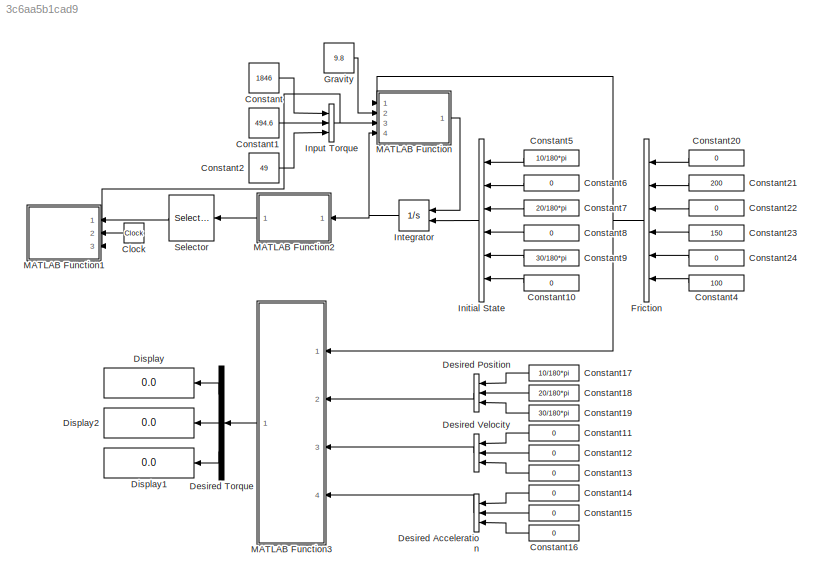
MODEL slx_3c6aa5b1cad9
KIND model
CONFIG AbsTol = auto
CONFIG EnableMultiTasking = off
CONFIG FixedStep = 0.01
CONFIG MaxStep = auto
CONFIG MinStep = auto
CONFIG RelTol = 1e-3
CONFIG SampleTimeConstraint = Unconstrained
CONFIG Solver = ode1
CONFIG SolverName = ode1
CONFIG StartTime = 0.0
CONFIG StopTime = inf
BLOCK [Clock] Clock
BLOCK [Constant] Constant
  Value = 1846
BLOCK [Constant] Constant1
  Value = 494.6
BLOCK [Constant] Constant10
  Value = 0
BLOCK [Constant] Constant11
  Value = 0
BLOCK [Constant] Constant12
  Value = 0
BLOCK [Constant] Constant13
  Value = 0
BLOCK [Constant] Constant14
  Value = 0
BLOCK [Constant] Constant15
  Value = 0
BLOCK [Constant] Constant16
  Value = 0
BLOCK [Constant] Constant17
  Value = 10/180*pi
BLOCK [Constant] Constant18
  Value = 20/180*pi
BLOCK [Constant] Constant19
  Value = 30/180*pi
BLOCK [Constant] Constant2
  Value = 49
BLOCK [Constant] Constant20
  Value = 0
BLOCK [Constant] Constant21
  Value = 200
BLOCK [Constant] Constant22
  Value = 0
BLOCK [Constant] Constant23
  Value = 150
BLOCK [Constant] Constant24
  Value = 0
BLOCK [Constant] Constant4
  Value = 100
BLOCK [Constant] Constant5
  Value = 10/180*pi
BLOCK [Constant] Constant6
  Value = 0
BLOCK [Constant] Constant7
  Value = 20/180*pi
BLOCK [Constant] Constant8
  Value = 0
BLOCK [Constant] Constant9
  Value = 30/180*pi
BLOCK [BusCreator] Desired Acceleration
  DisplayOption = bar
  InheritFromInputs = on
  Inputs = 3
  Ports = [3, 1]
BLOCK [BusCreator] Desired Position
  DisplayOption = bar
  InheritFromInputs = on
  Inputs = 3
  Ports = [3, 1]
BLOCK [Demux] Desired Torque
  DisplayOption = bar
  Outputs = 3
  Ports = [1, 3]
BLOCK [BusCreator] Desired Velocity
  DisplayOption = bar
  InheritFromInputs = on
  Inputs = 3
  Ports = [3, 1]
BLOCK [Display] Display
  Decimation = 1
  Ports = [1]
BLOCK [Display] Display1
  Decimation = 1
  Ports = [1]
BLOCK [Display] Display2
  Decimation = 1
  Ports = [1]
BLOCK [BusCreator] Friction
  DisplayOption = bar
  InheritFromInputs = on
  Inputs = 6
  Ports = [6, 1]
BLOCK [Constant] Gravity
  Value = 9.8
BLOCK [BusCreator] Initial State
  DisplayOption = bar
  InheritFromInputs = on
  Inputs = 6
  Ports = [6, 1]
BLOCK [BusCreator] Input Torque
  DisplayOption = bar
  InheritFromInputs = on
  Inputs = 3
  Ports = [3, 1]
BLOCK [Integrator] Integrator
  InitialCondition = [1/18*pi;0;1/9*pi;0;1/6*pi;0]
  InitialConditionSource = external
  Ports = [2, 1]
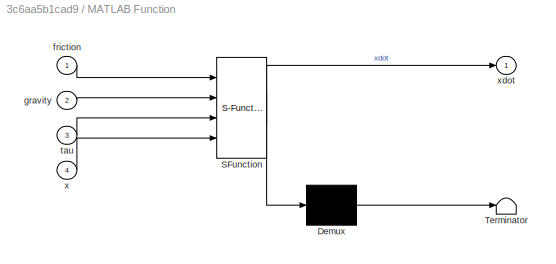
BLOCK [SubSystem] MATLAB Function
  ErrorFcn = Stateflow.Translate.translate
  PermitHierarchicalResolution = ExplicitOnly
  Ports = [4, 1]
  RequestExecContextInheritance = off
  SFBlockType = MATLAB Function
  TreatAsAtomicUnit = on
BLOCK [Demux] MATLAB Function/ Demux 
  Outputs = 1
  Ports = [1, 1]
BLOCK [S-Function] MATLAB Function/ SFunction 
  EnableBusSupport = on
  FunctionName = sf_sfun
  PortCounts = [4 2]
  Ports = [4, 2]
  SFcnIsStateOwnerBlock = off
  SFunctionDeploymentMode = off
  Tag = Stateflow S-Function task1 2
BLOCK [Terminator] MATLAB Function/ Terminator 
BLOCK [Inport] MATLAB Function/friction
  IconDisplay = Port number
BLOCK [Inport] MATLAB Function/gravity
  IconDisplay = Port number
  Port = 2
BLOCK [Inport] MATLAB Function/tau
  IconDisplay = Port number
  Port = 3
BLOCK [Inport] MATLAB Function/x
  IconDisplay = Port number
  Port = 4
BLOCK [Outport] MATLAB Function/xdot
  IconDisplay = Port number
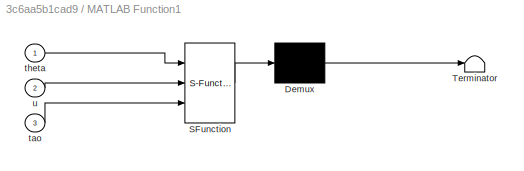
BLOCK [SubSystem] MATLAB Function1
  ErrorFcn = Stateflow.Translate.translate
  PermitHierarchicalResolution = ExplicitOnly
  Ports = [3]
  RequestExecContextInheritance = off
  SFBlockType = MATLAB Function
  TreatAsAtomicUnit = on
BLOCK [Demux] MATLAB Function1/ Demux 
  Outputs = 1
  Ports = [1, 1]
BLOCK [S-Function] MATLAB Function1/ SFunction 
  EnableBusSupport = on
  FunctionName = sf_sfun
  PortCounts = [3 1]
  Ports = [3, 1]
  SFcnIsStateOwnerBlock = off
  SFunctionDeploymentMode = off
  Tag = Stateflow S-Function task1 1
BLOCK [Terminator] MATLAB Function1/ Terminator 
BLOCK [Inport] MATLAB Function1/tao
  IconDisplay = Port number
  Port = 3
BLOCK [Inport] MATLAB Function1/theta
  IconDisplay = Port number
BLOCK [Inport] MATLAB Function1/u
  IconDisplay = Port number
  Port = 2
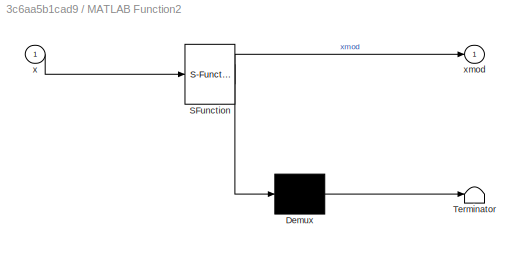
BLOCK [SubSystem] MATLAB Function2
  ErrorFcn = Stateflow.Translate.translate
  PermitHierarchicalResolution = ExplicitOnly
  Ports = [1, 1]
  RequestExecContextInheritance = off
  SFBlockType = MATLAB Function
  TreatAsAtomicUnit = on
BLOCK [Demux] MATLAB Function2/ Demux 
  Outputs = 1
  Ports = [1, 1]
BLOCK [S-Function] MATLAB Function2/ SFunction 
  EnableBusSupport = on
  FunctionName = sf_sfun
  PortCounts = [1 2]
  Ports = [1, 2]
  SFcnIsStateOwnerBlock = off
  SFunctionDeploymentMode = off
  Tag = Stateflow S-Function task1 3
BLOCK [Terminator] MATLAB Function2/ Terminator 
BLOCK [Inport] MATLAB Function2/x
  IconDisplay = Port number
BLOCK [Outport] MATLAB Function2/xmod
  IconDisplay = Port number
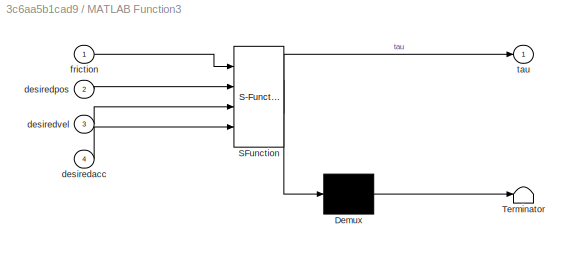
BLOCK [SubSystem] MATLAB Function3
  ErrorFcn = Stateflow.Translate.translate
  PermitHierarchicalResolution = ExplicitOnly
  Ports = [4, 1]
  RequestExecContextInheritance = off
  SFBlockType = MATLAB Function
  TreatAsAtomicUnit = on
BLOCK [Demux] MATLAB Function3/ Demux 
  Outputs = 1
  Ports = [1, 1]
BLOCK [S-Function] MATLAB Function3/ SFunction 
  EnableBusSupport = on
  FunctionName = sf_sfun
  PortCounts = [4 2]
  Ports = [4, 2]
  SFcnIsStateOwnerBlock = off
  SFunctionDeploymentMode = off
  Tag = Stateflow S-Function task1 4
BLOCK [Terminator] MATLAB Function3/ Terminator 
BLOCK [Inport] MATLAB Function3/desiredacc
  IconDisplay = Port number
  Port = 4
BLOCK [Inport] MATLAB Function3/desiredpos
  IconDisplay = Port number
  Port = 2
BLOCK [Inport] MATLAB Function3/desiredvel
  IconDisplay = Port number
  Port = 3
BLOCK [Inport] MATLAB Function3/friction
  IconDisplay = Port number
BLOCK [Outport] MATLAB Function3/tau
  IconDisplay = Port number
BLOCK [Selector] Selector
  IndexOptions = Index vector (dialog)
  Indices = [1 3 5]
  InputPortWidth = 6
  OutputSizes = 1
  Ports = [1, 1]
LINE Clock:1 -> MATLAB Function1:2
LINE Constant10:1 -> Initial State:6
LINE Constant11:1 -> Desired Velocity:1
LINE Constant12:1 -> Desired Velocity:2
LINE Constant13:1 -> Desired Velocity:3
LINE Constant14:1 -> Desired Acceleration:1
LINE Constant15:1 -> Desired Acceleration:2
LINE Constant16:1 -> Desired Acceleration:3
LINE Constant17:1 -> Desired Position:1
LINE Constant18:1 -> Desired Position:2
LINE Constant19:1 -> Desired Position:3
LINE Constant1:1 -> Input Torque:2
LINE Constant20:1 -> Friction:1
LINE Constant21:1 -> Friction:2
LINE Constant22:1 -> Friction:3
LINE Constant23:1 -> Friction:4
LINE Constant24:1 -> Friction:5
LINE Constant2:1 -> Input Torque:3
LINE Constant4:1 -> Friction:6
LINE Constant5:1 -> Initial State:1
LINE Constant6:1 -> Initial State:2
LINE Constant7:1 -> Initial State:3
LINE Constant8:1 -> Initial State:4
LINE Constant9:1 -> Initial State:5
LINE Constant:1 -> Input Torque:1
LINE Desired Acceleration:1 -> MATLAB Function3:4
LINE Desired Position:1 -> MATLAB Function3:2
LINE Desired Torque:1 -> Display:1
LINE Desired Torque:2 -> Display2:1
LINE Desired Torque:3 -> Display1:1
LINE Desired Velocity:1 -> MATLAB Function3:3
NET Friction:1 -> MATLAB Function3:1, MATLAB Function:1
LINE Gravity:1 -> MATLAB Function:2
LINE Initial State:1 -> Integrator:2
NET Input Torque:1 -> MATLAB Function1:3, MATLAB Function:3
NET Integrator:1 -> MATLAB Function2:1, MATLAB Function:4
LINE MATLAB Function2:1 -> Selector:1
LINE MATLAB Function3:1 -> Desired Torque:1
LINE MATLAB Function:1 -> Integrator:1
LINE Selector:1 -> MATLAB Function1:1
note: NET lines group one-source signal fan-out (src -> all destinations, sorted); 1:1 wires keep LINE
CHART MATLAB Function1 states=1 transitions=1
  STATE_LABEL 'eML_blk_kernel()'
  STATE_LABEL "SCRIPT:\nfunction animate(theta,u,tao)\n%#codegen\ncoder.extrinsic('saveas');\ncoder.extrinsic('num2str');\nu = int16( u / 0.01) + 1;\ntheta1 = theta(1);\ntheta2 = theta(2);\ntheta3 = theta(3);\n%hold off\nT_0 = eye(4);\nhold off\nl1 = 4;\nl2 = 3;\nl3 = 2;\npoint1=[[0,0,0];[4,0,0]];\npoint2 = [[0,0,0];[3,0,0]];\npoint3 = [[0,0,0];[2,0,0]];\n\nT_01 = [cos(theta1) -sin(theta1) 0 0; sin(theta1) cos(theta1) 0 0; 0 0 1 0...<+813ch>"
CHART MATLAB Function states=1 transitions=1
  STATE_LABEL 'eML_blk_kernel()'
  STATE_LABEL 'SCRIPT:\nfunction xdot = Dynamic(friction, gravity, tau, x)\n%#codegen\ntheta1 = x(1);\ntheta_1 = x(2);\ntheta2 = x(3);\ntheta_2 = x(4);\ntheta3 = x(5);\ntheta_3 = x(6);\n\nf_1 = friction(2);\nf_2 = friction(4);\nf_3 = friction(6);\n\ng = gravity;\ntau1 = tau(1);\ntau2 = tau(2);\ntau3 = tau(3);\n\nm1 = 20;\nm2 = 15;\nm3 = 10;\nl1 = 4;\nl2 = 3;\nl3 = 2;\nIzz1 = 0.5;\nIzz2 = 0.2;\nIzz3 = 0.1;\n\nM11 = m3 * (l1^2 + l2^2 + l3^2/4...<+1832ch>'
CHART MATLAB Function2 states=1 transitions=1
  STATE_LABEL 'eML_blk_kernel()'
  STATE_LABEL 'SCRIPT:\nfunction xmod = module(x)\nq1 = x(1);\nq2 = x(3);\nq3 = x(5);\nq1 = atan2(sin(q1), cos(q1));\nq2 = atan2(sin(q2), cos(q2));\nq3 = atan2(sin(q3), cos(q3));\nxmod = [q1;x(2);q2;x(4);q3;x(6)];\n'
CHART MATLAB Function3 states=1 transitions=1
  STATE_LABEL 'eML_blk_kernel()'
  STATE_LABEL 'SCRIPT:\nfunction tau = Torque(friction, desiredpos, desiredvel, desiredacc)\n%#codegen\ntheta1 = desiredpos(1);\ntheta2 = desiredpos(2);\ntheta3 = desiredpos(3);\ntheta_1 = desiredvel(1);\ntheta_2 = desiredvel(2);\ntheta_3 = desiredvel(3);\ntheta_11 = desiredacc(1);\ntheta_22 = desiredacc(2);\ntheta_33 = desiredacc(3);\n\nf_1 = friction(2);\nf_2 = friction(4);\nf_3 = friction(6);\n\nE = [theta_11; theta_22; theta...<+1845ch>'
